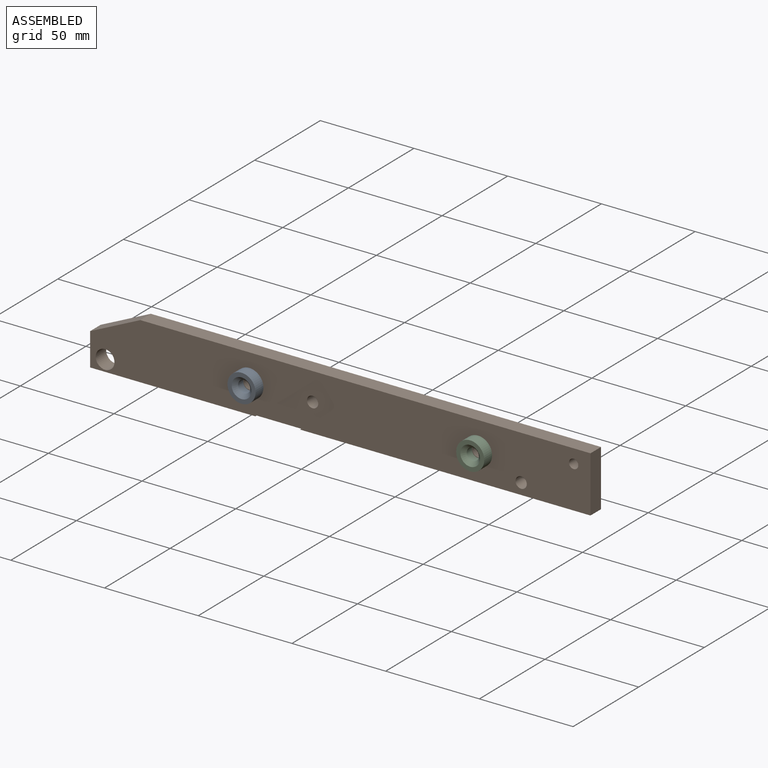
[diagram: assembled view]
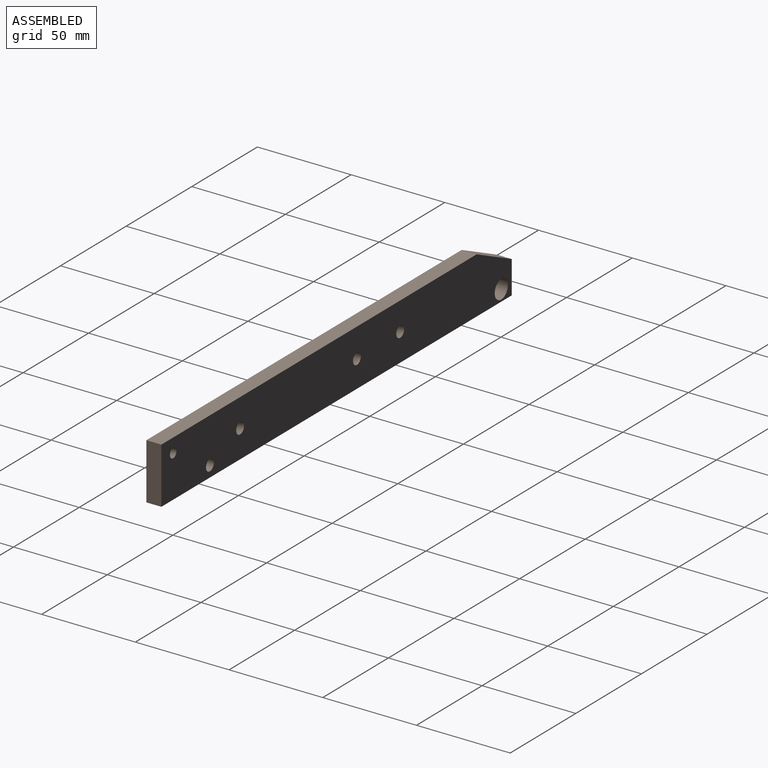
[diagram: assembled view, second angle]
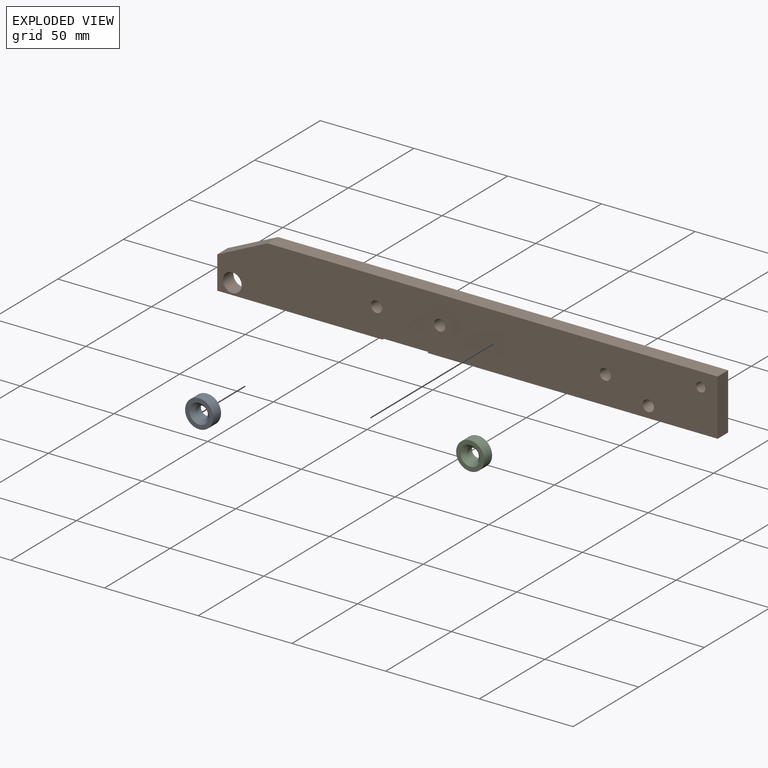
[diagram: exploded view]
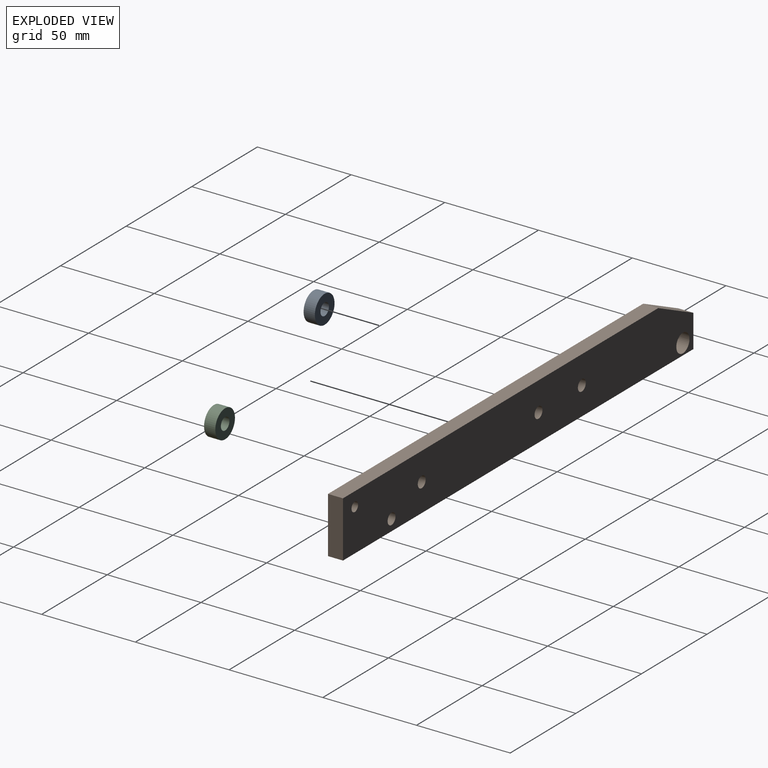
[diagram: exploded view, second angle]
ASSEMBLY  parts=3 mates=2
PART A: 5 faces, bbox 15x6x15 mm
  f0: cylinder r=3.25mm len=6.5mm, axis (0,1,0), area 81.7mm2, adj f3,f4
  f1: cylinder r=7.5mm len=15mm, axis (0,1,0), area 282.7mm2, adj f2,f3
  f2: plane 15x15mm, normal (0,-1,0), area 90.1mm2, adj f1,f4
  f3: plane 15x15mm, normal (0,1,0), area 143.5mm2, adj f0,f1
  f4: cone r=3.25mm half-angle=45deg, axis (0,-1,0), area 75.5mm2, adj f0,f2
PART B: 19 faces, bbox 267x8x30 mm
  f0: plane 267x30mm, normal (0,-1,0), area 7152.5mm2, adj f1,f2,f3,f4,f5,f6,f7,f8
  f1: plane 30x8mm, normal (1,0,0), area 240mm2, adj f0,f2,f5,f11
  f2: plane 240.19x8mm, normal (0,0,1), area 1921.5mm2, adj f0,f1,f3,f11
  f3: plane 26.81x12.5mm, normal (-0.42,0,0.91), area 236.6mm2, adj f0,f2,f4,f11
  f4: plane 17.5x8mm, normal (-1,0,0), area 140mm2, adj f0,f3,f5,f11
  f5: plane 267x8mm, normal (0,0,-1), area 2112.2mm2, adj f0,f1,f4,f11,f13,f14,f17
  f6: cylinder r=2.5mm len=8mm, axis (0,1,0), area 125.7mm2, adj f0,f11
  f7: cylinder r=3mm len=8mm, axis (0,1,0), area 150.8mm2, adj f0,f11
  f8: cylinder r=3mm len=8mm, axis (0,1,0), area 150.8mm2, adj f0,f11
  f9: cylinder r=3mm len=8mm, axis (0,1,0), area 150.8mm2, adj f0,f11
  f10: cylinder r=5mm len=10mm, axis (0,1,0), area 251.3mm2, adj f0,f11
  f11: plane 267x30mm, normal (0,1,0), area 7631.2mm2, adj f1,f2,f3,f4,f5,f6,f7,f8
  f12: cylinder r=3mm len=4.22mm, axis (0,-1,0), area 4.7mm2, adj f0,f13,f16,f17
  f13: plane 31.33x25.37mm, normal (0.63,0,-0.78), area 40.3mm2, adj f0,f5,f12,f17
  f14: plane 16.94x13.72mm, normal (-0.63,0,0.78), area 21.8mm2, adj f0,f5,f15,f17
  f15: cylinder r=3mm len=4.22mm, axis (0,-1,0), area 4.7mm2, adj f0,f14,f16,f17
  f16: plane 6.99x5.66mm, normal (-0.78,0,-0.63), area 9mm2, adj f0,f12,f15,f17
  f17: plane 41.88x26.04mm, normal (0,-1,0), area 478.7mm2, adj f5,f12,f13,f14,f15,f16,f18
  f18: cylinder r=3mm len=7mm, axis (0,-1,0), area 131.9mm2, adj f11,f17
PART C: same geometry as A
PLACE A rot(axis=(-0.96,0.26,0.11),0deg) t=(-46,26.08,23.71)mm
PLACE B rot(axis=(-0.96,0.26,0.11),0deg) t=(-89.8,34.08,11.69)mm
PLACE C rot(axis=(-0.96,0.26,0.11),0deg) t=(76,26.08,23.71)mm
MATE parallel B.f8 <-> C.f1  axis (0,-1,0) through (76,26.08,23.71)mm
MATE planar A.f1 <-> B.f9  axis (0,1,0) through (-46,26.08,23.71)mm
